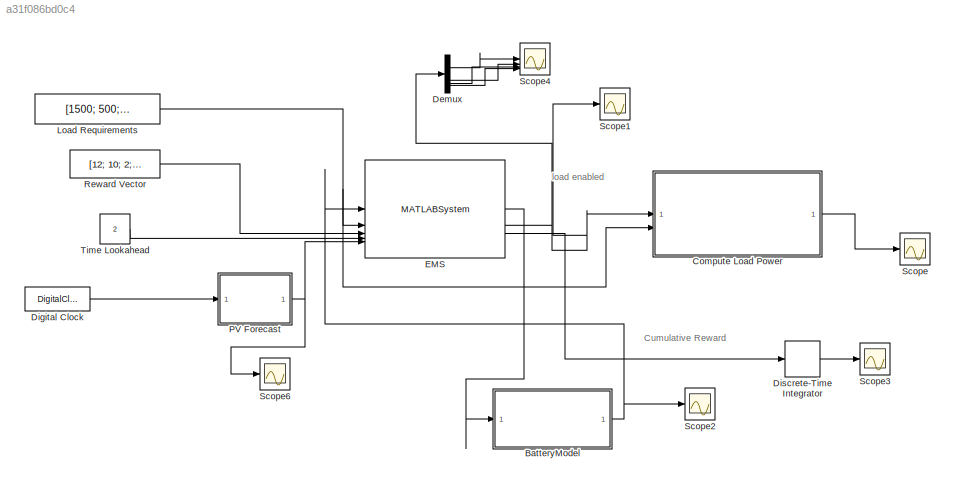
MODEL slx_a31f086bd0c4
KIND model
CONFIG AbsTol = auto
CONFIG EnableMultiTasking = off
CONFIG FixedStep = auto
CONFIG MaxStep = auto
CONFIG MinStep = auto
CONFIG RelTol = 1e-3
CONFIG SampleTimeConstraint = Unconstrained
CONFIG SolverName = VariableStepAuto
CONFIG StartTime = 0.0
CONFIG StopTime = 7200
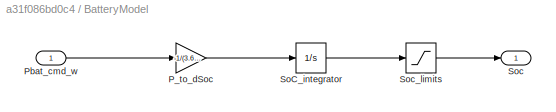
BLOCK [SubSystem] BatteryModel
BLOCK [Gain] BatteryModel/P_to_dSoc
  Gain = -1/(3.6e6)
BLOCK [Inport] BatteryModel/Pbat_cmd_w
BLOCK [Integrator] BatteryModel/SoC_integrator
  InitialCondition = 0.8
BLOCK [Outport] BatteryModel/Soc
BLOCK [Saturate] BatteryModel/Soc_limits
  LowerLimit = 0.2
  UpperLimit = 0.95
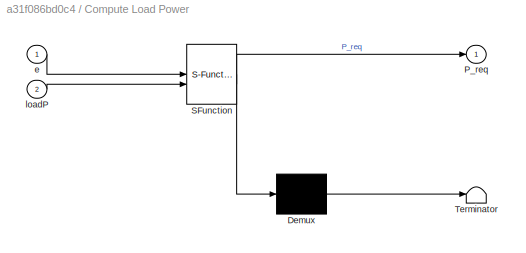
BLOCK [SubSystem] Compute Load Power
  ErrorFcn = Stateflow.Translate.translate
  PermitHierarchicalResolution = ExplicitOnly
  SFBlockType = MATLAB Function
  TreatAsAtomicUnit = on
BLOCK [Demux] Compute Load Power/ Demux 
  Outputs = 1
BLOCK [S-Function] Compute Load Power/ SFunction 
  EnableBusSupport = off
  FunctionName = sf_sfun
  PortCounts = [2 2]
  SFcnIsStateOwnerBlock = off
  SFunctionDeploymentMode = off
  Tag = Stateflow S-Function 1
BLOCK [Terminator] Compute Load Power/ Terminator 
BLOCK [Outport] Compute Load Power/P_req
  VectorParamsAs1DForOutWhenUnconnected = off
BLOCK [Inport] Compute Load Power/e
BLOCK [Inport] Compute Load Power/loadP
  Port = 2
BLOCK [Demux] Demux
BLOCK [DigitalClock] Digital Clock
  SampleTime = 60
BLOCK [DiscreteIntegrator] Discrete-Time Integrator
  ICPrevOutput = DiscIntNeverNeededParam
  ICPrevScaledInput = DiscIntNeverNeededParam
  InitialConditionSetting = Auto
  SampleTime = -1
BLOCK [MATLABSystem] EMS
  MaskType = EMSController
  SimulateUsing = Interpreted execution
  System = EMSController
BLOCK [Constant] Load Requirements
  Value = [1500; 500; 200; 200]
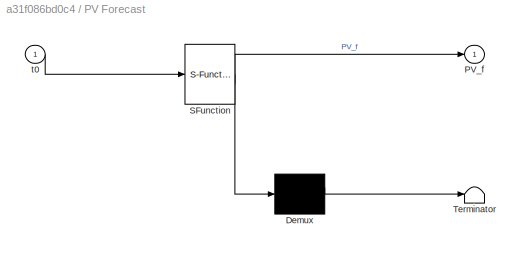
BLOCK [SubSystem] PV Forecast
  ErrorFcn = Stateflow.Translate.translate
  PermitHierarchicalResolution = ExplicitOnly
  SFBlockType = MATLAB Function
  TreatAsAtomicUnit = on
BLOCK [Demux] PV Forecast/ Demux 
  Outputs = 1
BLOCK [S-Function] PV Forecast/ SFunction 
  EnableBusSupport = off
  FunctionName = sf_sfun
  PortCounts = [1 2]
  SFcnIsStateOwnerBlock = off
  SFunctionDeploymentMode = off
  Tag = Stateflow S-Function 2
BLOCK [Terminator] PV Forecast/ Terminator 
BLOCK [Outport] PV Forecast/PV_f
BLOCK [Inport] PV Forecast/t0
BLOCK [Constant] Reward Vector
  Value = [12; 10; 2; 1]
BLOCK [Scope] Scope
  ActiveDisplayYMaximum = 842.71660905738372
  ActiveDisplayYMinimum = 45.04063249488388
  Floating = off
  GraphicalSettings = {"Style":{"BackgroundColor":[0.12941176470588237,0.12941176470588237,0.12941176470588237],"AxesColor":[0.07058823529411765,0.07058823529411765,0.07058823529411765],"LabelsColor":[0.8509803921568627,0.8509803921568627,0.8509803921568627],"PreserveColors":false,"Visible":[true],"LineStyle":["-"],"LineWidth":[1.5],"BarWidth":[0.9],"LineColor":["auto"],"LineFaceAlpha":[1],"LineEdgeAlpha":[1],"Marker":...<+1987ch>
  MultipleDisplayCache = [{"MaxYLimMag":2225,"MaxYLimReal":842.71660905738372,"MinYLimMag":0,"MinYLimReal":45.04063249488388,"PlotAsMagnitudePhase":false,"ShowGrid":true,"ShowLegend":false,"Title":"%<SignalLabel>","YLabel":""}]
  NumInputPorts = 1
  ScopeFrameLocation = window
  WasSavedAsWebScope = on
  WindowPosition = [1.000000,49.000000,1536.000000,793.000000,]
BLOCK [Scope] Scope1
  ActiveDisplayYMaximum = 1.4073250284654035
  ActiveDisplayYMinimum = -1.4609204269476912
  DataLoggingVariableName = ScopeData1
  Floating = off
  GraphicalSettings = {"AxesScalingProperties":{"AlignXAxis":"Center","AlignYAxis":"Center","AutoScaleXAxisLimits":false,"AxesScaling":"Auto","AxesScalingNumUpdates":10,"ExpandOnly":true,"ScaleAxesLimitsAtStop":false,"XAxisDataRange":100,"YAxisDataRange":80},"DisplayProperties":{"ColorOrder":["auto","auto","auto","auto","auto","auto","auto","auto","auto","auto","auto","auto","auto","auto","auto","auto","auto","auto","a...<+2267ch>
  MultipleDisplayCache = [{"MaxYLimMag":10,"MaxYLimReal":1.4073250284654035,"MinYLimMag":0,"MinYLimReal":-1.4609204269476912,"PlotAsMagnitudePhase":false,"ShowGrid":true,"ShowLegend":false,"Title":"%<SignalLabel>","YLabel":""}]
  NumInputPorts = 1
  ScopeFrameLocation = window
  WasSavedAsWebScope = on
  WindowPosition = [391.000000,148.000000,925.000000,606.000000,]
BLOCK [Scope] Scope2
  ActiveDisplayYMaximum = 0.82282077042989632
  ActiveDisplayYMinimum = 0.61342222935570168
  AxesScaling = Auto
  DataLoggingVariableName = ScopeData2
  Floating = off
  GraphicalSettings = {"Style":{"BackgroundColor":[0.12941176470588237,0.12941176470588237,0.12941176470588237],"AxesColor":[0.07058823529411765,0.07058823529411765,0.07058823529411765],"LabelsColor":[0.8509803921568627,0.8509803921568627,0.8509803921568627],"PreserveColors":false,"Visible":[true],"LineStyle":["-"],"LineWidth":[1.5],"BarWidth":[0.9],"LineColor":["auto"],"LineFaceAlpha":[1],"LineEdgeAlpha":[1],"Marker":...<+2039ch>
  MultipleDisplayCache = [{"MaxYLimMag":0.82282077042989632,"MaxYLimReal":0.82282077042989632,"MinYLimMag":0.61342222935570168,"MinYLimReal":0.61342222935570168,"PlotAsMagnitudePhase":false,"ShowGrid":true,"ShowLegend":false,"Title":"%<SignalLabel>","YLabel":""}]
  NumInputPorts = 1
  ScopeFrameLocation = window
  Visible = on
  WasSavedAsWebScope = on
  WindowPosition = [0.000000,36.000000,1536.000000,793.000000,]
BLOCK [Scope] Scope3
  ActiveDisplayYMaximum = 1
  ActiveDisplayYMinimum = -1
  DataLoggingVariableName = ScopeData3
  Floating = off
  GraphicalSettings = {"Style":{"BackgroundColor":[0.12941176470588237,0.12941176470588237,0.12941176470588237],"AxesColor":[0.07058823529411765,0.07058823529411765,0.07058823529411765],"LabelsColor":[0.8509803921568627,0.8509803921568627,0.8509803921568627],"PreserveColors":false,"Visible":[true],"LineStyle":["-"],"LineWidth":[1.5],"BarWidth":[0.9],"LineColor":["auto"],"LineFaceAlpha":[1],"LineEdgeAlpha":[1],"Marker":...<+1931ch>
  MultipleDisplayCache = [{"MaxYLimMag":10,"MaxYLimReal":1,"MinYLimMag":0,"MinYLimReal":-1,"PlotAsMagnitudePhase":false,"ShowGrid":true,"ShowLegend":false,"Title":"%<SignalLabel>","YLabel":""}]
  NumInputPorts = 1
  ScopeFrameLocation = window
  WasSavedAsWebScope = on
  WindowPosition = [0.000000,36.000000,1536.000000,793.000000,]
BLOCK [Scope] Scope4
  ActiveDisplayYMaximum = 1.1655542861012171
  ActiveDisplayYMinimum = 0.8700631973434042
  DataLoggingVariableName = ScopeData4
  Floating = off
  GraphicalSettings = {"AxesScalingProperties":{"AlignXAxis":"Center","AlignYAxis":"Center","AutoScaleXAxisLimits":false,"AxesScaling":"Manual","AxesScalingNumUpdates":10,"ExpandOnly":true,"ScaleAxesLimitsAtStop":false,"XAxisDataRange":100,"YAxisDataRange":80},"DisplayProperties":{"ColorOrder":["auto","auto","auto","auto","auto","auto","auto","auto","auto","auto","auto","auto","auto","auto","auto","auto","auto","auto",...<+2331ch>
  MultipleDisplayCache = [{"MaxYLimMag":10,"MaxYLimReal":1.1655542861012171,"MinYLimMag":0,"MinYLimReal":0.8700631973434042,"PlotAsMagnitudePhase":false,"ShowGrid":true,"ShowLegend":false,"Title":"%<SignalLabel>","YLabel":""}]
  NumInputPorts = 4
  ScopeFrameLocation = window
  WasSavedAsWebScope = on
  WindowPosition = [-74.000000,-65.000000,1539.000000,756.000000,]
BLOCK [Scope] Scope6
  ActiveDisplayYMaximum = 842.71660905738372
  ActiveDisplayYMinimum = 0.32737981076211264
  AxesScaling = Auto
  DataLoggingVariableName = ScopeData6
  Floating = off
  GraphicalSettings = {"Style":{"BackgroundColor":[0.12941176470588237,0.12941176470588237,0.12941176470588237],"AxesColor":[0.07058823529411765,0.07058823529411765,0.07058823529411765],"LabelsColor":[0.8509803921568627,0.8509803921568627,0.8509803921568627],"PreserveColors":false,"Visible":[true,true],"LineStyle":["-","-"],"LineWidth":[1.5,1.5],"BarWidth":[0.9,0.9],"LineColor":["auto","auto"],"LineFaceAlpha":[1,1],"Li...<+2168ch>
  MultipleDisplayCache = [{"MaxYLimMag":842.71660905738372,"MaxYLimReal":842.71660905738372,"MinYLimMag":0.32737981076211264,"MinYLimReal":0.32737981076211264,"PlotAsMagnitudePhase":false,"ShowGrid":true,"ShowLegend":false,"Title":"%<SignalLabel>","YLabel":""}]
  NumInputPorts = 1
  ScopeFrameLocation = window
  WasSavedAsWebScope = on
  WindowPosition = [2.000000,37.000000,1533.000000,790.000000,]
BLOCK [Constant] Time Lookahead
  Value = 2
ANNOTATION (root): Cumulative Reward
ANNOTATION (root): load enabled
LINE BatteryModel/P_to_dSoc:1 -> BatteryModel/SoC_integrator:1
LINE BatteryModel/Pbat_cmd_w:1 -> BatteryModel/P_to_dSoc:1
LINE BatteryModel/SoC_integrator:1 -> BatteryModel/Soc_limits:1
LINE BatteryModel/Soc_limits:1 -> BatteryModel/Soc:1
NET BatteryModel:1 -> EMS:1, Scope2:1
LINE Compute Load Power:1 -> Scope:1
LINE Demux:1 -> Scope4:1
LINE Demux:2 -> Scope4:2
LINE Demux:3 -> Scope4:3
LINE Demux:4 -> Scope4:4
LINE Digital Clock:1 -> PV Forecast:1
LINE Discrete-Time Integrator:1 -> Scope3:1
LINE EMS:1 -> BatteryModel:1
NET EMS:2 -> Compute Load Power:1, Demux:1, Scope1:1
LINE EMS:3 -> Discrete-Time Integrator:1
NET Load Requirements:1 -> Compute Load Power:2, EMS:2
NET PV Forecast:1 -> EMS:5, Scope6:1
LINE Reward Vector:1 -> EMS:3
LINE Time Lookahead:1 -> EMS:4
note: NET lines group one-source signal fan-out (src -> all destinations, sorted); 1:1 wires keep LINE
CHART PV Forecast states=1 transitions=1
  STATE_LABEL 'eML_blk_kernel()'
  STATE_LABEL 'SCRIPT:\n% function PV_f  = buildForecast(t0)\n% %#codegen\n% \n% % Get current simulation time\n% % t0 = getCurrentTime();\n% % PV_f = PV_Profile(T, t0);\n% \n% % timestep (seconds) – match your fixed-step size\n% T  = 10;\n% dt = 60; \n% \n% % PV model parameters\n% Pmax = 2000; \n% day_length = 86400; \n% \n% PV_f = zeros(T,1);\n% \n% for k = 1:T\n%     t_future = t0 + k*dt;\n%     PV_f(k) = max(Pmax * sin(pi * t_...<+462ch>'
CHART Compute Load Power states=1 transitions=1
  STATE_LABEL 'eML_blk_kernel()'
  STATE_LABEL 'SCRIPT:\nfunction P_req = computeLoadPower(e, loadP)\n% e      : vector of enable signals (0/1)\n% loadP  : vector of load power ratings (W)\n% Output : total required load power (W)\n\n    % Ensure column vectors\n    e = e(:);\n    loadP = loadP(:);\n\n    % Total load power\n    P_req = sum(e .* loadP);\nend'
CHART  states=0 transitions=0
CHART  states=0 transitions=0
